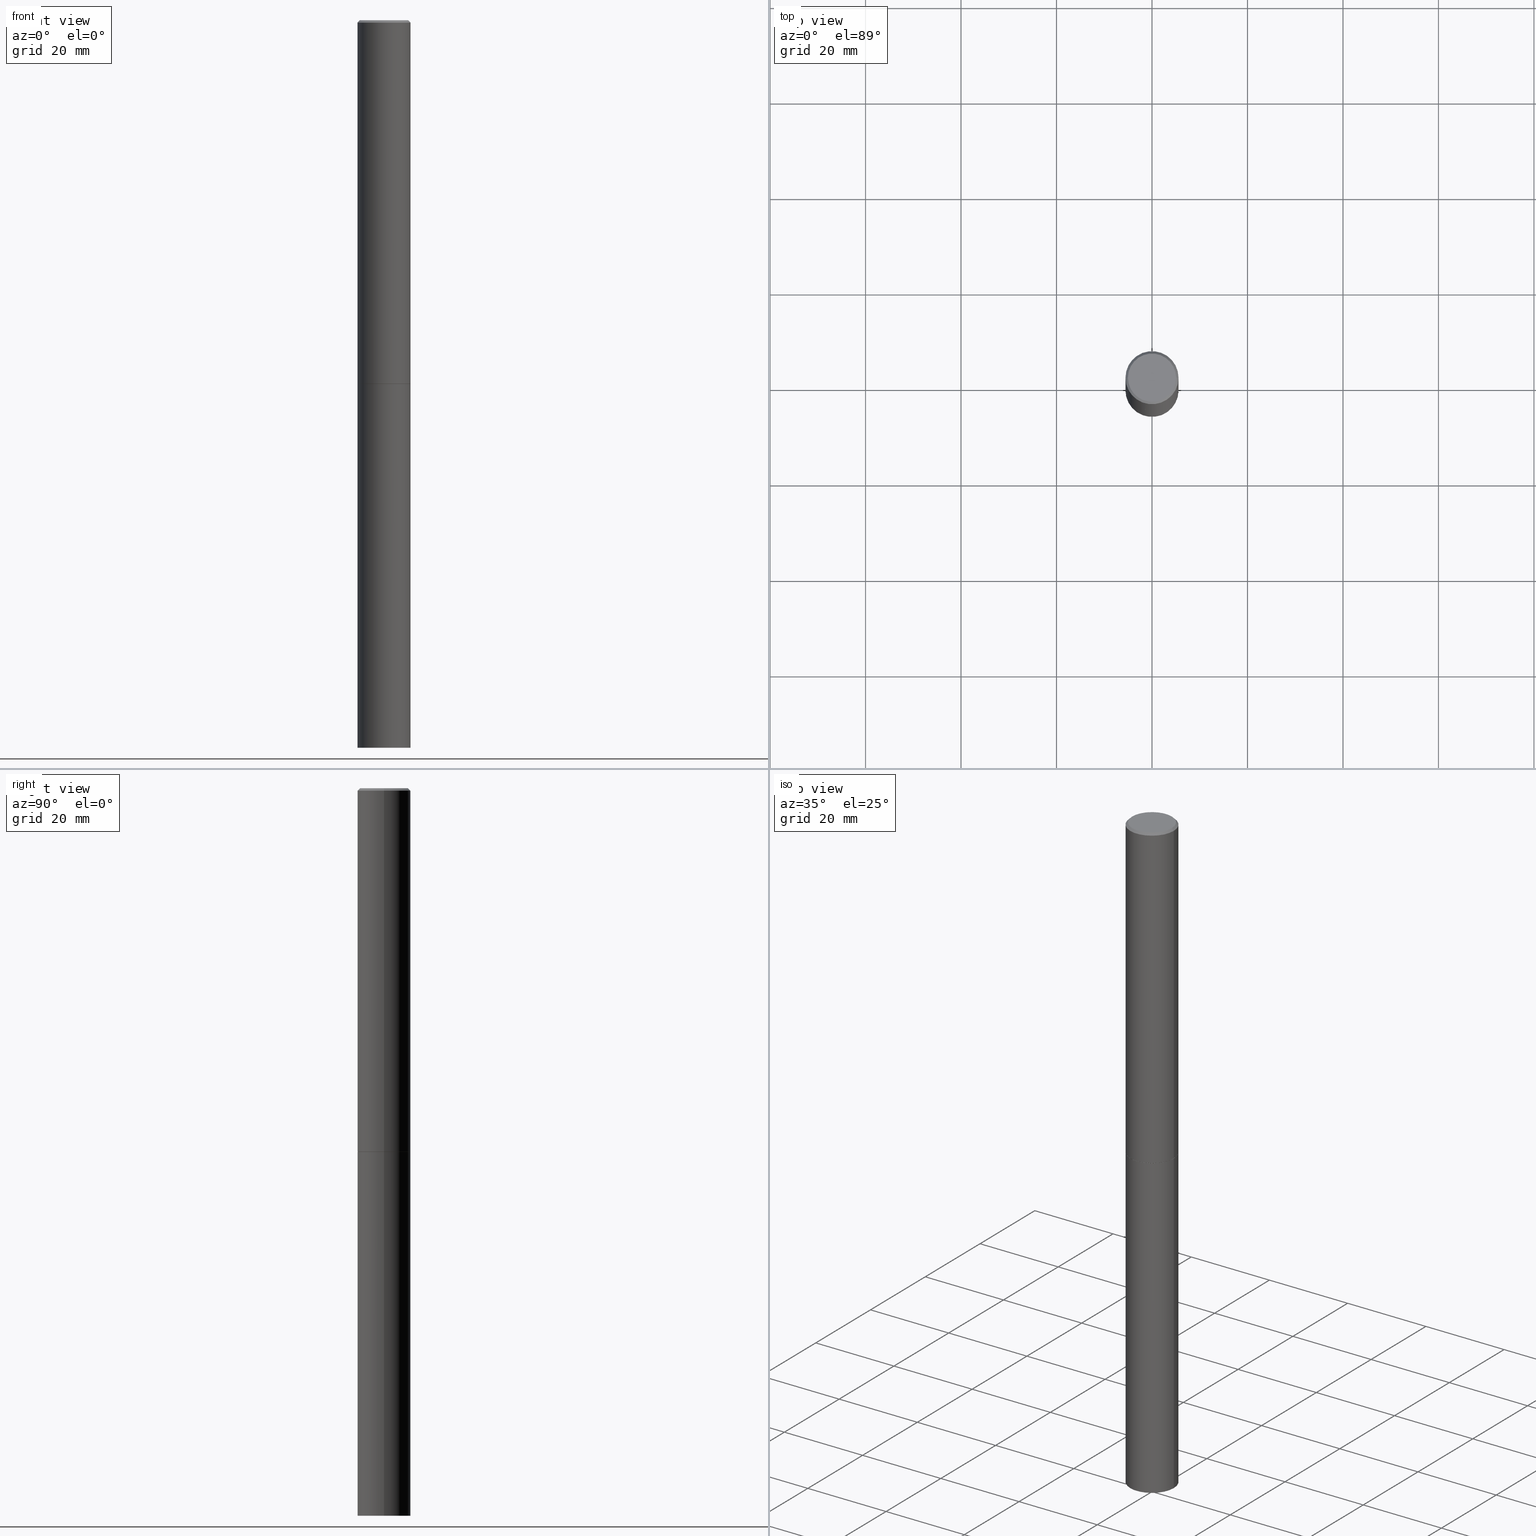
[diagram: canonical four-view strip — front | top / right | iso, engineering-drawing reading convention]
A machine part, canonical four-view strip (front | top / right | iso — engineering-drawing reading convention). The complete STEP part file that produces these views, byte-faithful:
ISO-10303-21;
HEADER;
FILE_DESCRIPTION (( 'STEP AP203' ),
    '1' );
FILE_NAME ('31963.STEP',
    '2024-02-27T14:28:25',
    ( '' ),
    ( '' ),
    'SwSTEP 2.0',
    'SolidWorks 2023',
    '' );
FILE_SCHEMA (( 'CONFIG_CONTROL_DESIGN' ));
ENDSEC;

DATA;
#1 = APPROVAL_STATUS ( 'not_yet_approved' ) ;
#2 = AXIS2_PLACEMENT_3D ( 'NONE', #167, #255, #233 ) ;
#3 = ORIENTED_EDGE ( 'NONE', *, *, #247, .T. ) ;
#4 = PRODUCT_DEFINITION ( 'UNKNOWN', '', #139, #20 ) ;
#5 = CARTESIAN_POINT ( 'NONE',  ( 0.2187500000000000000, -2.247641111880274434E-14, -6.000000000000000888 ) ) ;
#6 = DIRECTION ( 'NONE',  ( 1.000000000000000000, -6.982962677686266711E-15, 4.876176775795935232E-29 ) ) ;
#7 = APPROVAL_DATE_TIME ( #211, #65 ) ;
#8 = LENGTH_MEASURE_WITH_UNIT ( LENGTH_MEASURE( 0.02539999999999999897 ), #272 );
#9 = PLANE ( 'NONE',  #142 ) ;
#10 = CARTESIAN_POINT ( 'NONE',  ( 0.2187500000000000000, -1.200196710227330483E-14, -2.999999999999999556 ) ) ;
#11 = CIRCLE ( 'NONE', #107, 0.2187499999999996114 ) ;
#12 = ADVANCED_FACE ( 'NONE', ( #193 ), #225, .T. ) ;
#13 = APPLICATION_PROTOCOL_DEFINITION ( 'international standard', 'config_control_design', 1994, #261 ) ;
#14 = DIRECTION ( 'NONE',  ( 1.000000000000000000, -6.982962677686262766E-15, 0.000000000000000000 ) ) ;
#15 = CARTESIAN_POINT ( 'NONE',  ( 7.333960949749226429E-29, -1.047095253519059492E-14, -2.999000000000000554 ) ) ;
#16 = CARTESIAN_POINT ( 'NONE',  ( 7.336406418555408669E-29, -1.047444401652943478E-14, -2.999999999999999556 ) ) ;
#17 = EDGE_CURVE ( 'NONE', #27, #229, #359, .T. ) ;
#18 = VERTEX_POINT ( 'NONE', #267 ) ;
#19 = DIRECTION ( 'NONE',  ( -2.445468806185136597E-29, 3.491481338843145583E-15, 1.000000000000000000 ) ) ;
#20 = DESIGN_CONTEXT ( 'detailed design', #93, 'design' ) ;
#21 = DIRECTION ( 'NONE',  ( 1.000000000000000000, -6.982962677686266711E-15, 4.876176775795935232E-29 ) ) ;
#22 = CARTESIAN_POINT ( 'NONE',  ( 0.000000000000000000, 0.000000000000000000, 0.000000000000000000 ) ) ;
#23 = ADVANCED_FACE ( 'NONE', ( #248 ), #221, .T. ) ;
#24 = DIRECTION ( 'NONE',  ( -1.000000000000000000, 6.982962677686266711E-15, 0.000000000000000000 ) ) ;
#25 = AXIS2_PLACEMENT_3D ( 'NONE', #16, #118, #98 ) ;
#26 = ORIENTED_EDGE ( 'NONE', *, *, #92, .F. ) ;
#27 = VERTEX_POINT ( 'NONE', #271 ) ;
#28 = CARTESIAN_POINT ( 'NONE',  ( 1.467281283711081958E-28, -2.094888803305887271E-14, -6.000000000000000888 ) ) ;
#29 = ORIENTED_EDGE ( 'NONE', *, *, #180, .F. ) ;
#30 = PRODUCT ( '31963', '31963', '', ( #103 ) ) ;
#31 = VERTEX_POINT ( 'NONE', #10 ) ;
#32 = COORDINATED_UNIVERSAL_TIME_OFFSET ( 5, 0, .BEHIND. ) ;
#33 = ORIENTED_EDGE ( 'NONE', *, *, #287, .T. ) ;
#34 = CALENDAR_DATE ( 2024, 27, 2 ) ;
#35 = CIRCLE ( 'NONE', #59, 0.1987499999999996214 ) ;
#36 = ORIENTED_EDGE ( 'NONE', *, *, #17, .T. ) ;
#37 = LOCAL_TIME ( 9, 28, 25.00000000000000000, #99 ) ;
#38 = PERSON_AND_ORGANIZATION_ROLE ( 'creator' ) ;
#39 = DIRECTION ( 'NONE',  ( 2.445468806185136597E-29, -3.491481338843145583E-15, -1.000000000000000000 ) ) ;
#40 = CARTESIAN_POINT ( 'NONE',  ( 0.2187500000000000000, -1.527523085743870843E-15, 1.066663669705360885E-29 ) ) ;
#41 = DIRECTION ( 'NONE',  ( 1.000000000000000000, 0.000000000000000000, 0.000000000000000000 ) ) ;
#42 = EDGE_CURVE ( 'NONE', #314, #54, #148, .T. ) ;
#43 = DIRECTION ( 'NONE',  ( 1.000000000000000000, -6.982962677686266711E-15, 0.000000000000000000 ) ) ;
#44 = EDGE_CURVE ( 'NONE', #112, #18, #354, .T. ) ;
#45 = PLANE ( 'NONE',  #119 ) ;
#46 = AXIS2_PLACEMENT_3D ( 'NONE', #356, #39, #24 ) ;
#47 = AXIS2_PLACEMENT_3D ( 'NONE', #53, #330, #41 ) ;
#48 = FACE_OUTER_BOUND ( 'NONE', #218, .T. ) ;
#49 = CC_DESIGN_PERSON_AND_ORGANIZATION_ASSIGNMENT ( #190, #38, ( #4 ) ) ;
#50 = LINE ( 'NONE', #130, #237 ) ;
#51 = ADVANCED_BREP_SHAPE_REPRESENTATION ( '31963', ( #87, #204, #47 ), #312 ) ;
#52 = ORIENTED_EDGE ( 'NONE', *, *, #92, .T. ) ;
#53 = CARTESIAN_POINT ( 'NONE',  ( 0.000000000000000000, 0.000000000000000000, 0.000000000000000000 ) ) ;
#54 = VERTEX_POINT ( 'NONE', #349 ) ;
#55 = CARTESIAN_POINT ( 'NONE',  ( 1.387863832190142669E-15, 0.1987499999999996214, -6.939319160950738982E-16 ) ) ;
#56 = APPROVAL ( #244, 'UNSPECIFIED' ) ;
#57 = EDGE_CURVE ( 'NONE', #31, #85, #192, .T. ) ;
#58 = VERTEX_POINT ( 'NONE', #339 ) ;
#59 = AXIS2_PLACEMENT_3D ( 'NONE', #91, #62, #335 ) ;
#60 = PLANE ( 'NONE',  #2 ) ;
#61 = CARTESIAN_POINT ( 'NONE',  ( 0.2187500000000000000, -1.199847562093446498E-14, -2.999000000000000554 ) ) ;
#62 = DIRECTION ( 'NONE',  ( -2.445468806185136597E-29, 3.491481338843145583E-15, 1.000000000000000000 ) ) ;
#63 = AXIS2_PLACEMENT_3D ( 'NONE', #171, #286, #21 ) ;
#64 = DIRECTION ( 'NONE',  ( 1.000000000000000000, -6.982962677686266711E-15, 4.876176775795936353E-29 ) ) ;
#65 = APPROVAL ( #1, 'UNSPECIFIED' ) ;
#66 = DIRECTION ( 'NONE',  ( -2.445468806185136877E-29, 3.491481338843145188E-15, 1.000000000000000000 ) ) ;
#67 = AXIS2_PLACEMENT_3D ( 'NONE', #245, #187, #6 ) ;
#68 = CONICAL_SURFACE ( 'NONE', #276, 0.2177499999999999991, 0.7853981633978239785 ) ;
#69 = ORIENTED_EDGE ( 'NONE', *, *, #88, .T. ) ;
#70 = ORIENTED_EDGE ( 'NONE', *, *, #44, .F. ) ;
#71 = PRODUCT_RELATED_PRODUCT_CATEGORY ( 'detail', '', ( #30 ) ) ;
#72 = SECURITY_CLASSIFICATION_LEVEL ( 'unclassified' ) ;
#73 = AXIS2_PLACEMENT_3D ( 'NONE', #258, #289, #262 ) ;
#74 = DIRECTION ( 'NONE',  ( 0.7071067811865469066, -7.319954787623254468E-15, -0.7071067811865482389 ) ) ;
#75 = DIRECTION ( 'NONE',  ( 1.000000000000000000, -6.982962677686266711E-15, 0.000000000000000000 ) ) ;
#76 = CARTESIAN_POINT ( 'NONE',  ( -0.2187499999999996114, 1.457693458967004981E-15, -0.02000000000000003164 ) ) ;
#77 = EDGE_CURVE ( 'NONE', #27, #85, #322, .T. ) ;
#78 = DIRECTION ( 'NONE',  ( -2.445468806185136597E-29, 3.491481338843145583E-15, 1.000000000000000000 ) ) ;
#79 = LINE ( 'NONE', #188, #84 ) ;
#80 = APPROVAL_ROLE ( '' ) ;
#81 = CARTESIAN_POINT ( 'NONE',  ( -0.2187500000000000000, -1.415735379031893458E-14, -2.999999999999999556 ) ) ;
#82 =( NAMED_UNIT ( * ) SI_UNIT ( $, .STERADIAN. ) SOLID_ANGLE_UNIT ( ) );
#83 = VECTOR ( 'NONE', #66, 39.37007874015748143 ) ;
#84 = VECTOR ( 'NONE', #251, 39.37007874015748143 ) ;
#85 = VERTEX_POINT ( 'NONE', #81 ) ;
#86 = ORIENTED_EDGE ( 'NONE', *, *, #95, .F. ) ;
#87 = MANIFOLD_SOLID_BREP ( 'Body-Move/Copy2[1]', #363 ) ;
#88 = EDGE_CURVE ( 'NONE', #18, #54, #191, .T. ) ;
#89 = CARTESIAN_POINT ( 'NONE',  ( 7.333960949749226429E-29, -1.047095253519059492E-14, -2.999000000000000554 ) ) ;
#90 = CC_DESIGN_DATE_AND_TIME_ASSIGNMENT ( #123, #241, ( #343 ) ) ;
#91 = CARTESIAN_POINT ( 'NONE',  ( 0.000000000000000000, 0.000000000000000000, 0.000000000000000000 ) ) ;
#92 = EDGE_CURVE ( 'NONE', #172, #314, #243, .T. ) ;
#93 = APPLICATION_CONTEXT ( 'configuration controlled 3d designs of mechanical parts and assemblies' ) ;
#94 = EDGE_LOOP ( 'NONE', ( #344, #125 ) ) ;
#95 = EDGE_CURVE ( 'NONE', #112, #58, #134, .T. ) ;
#96 = ORIENTED_EDGE ( 'NONE', *, *, #319, .T. ) ;
#97 = LINE ( 'NONE', #76, #198 ) ;
#98 = DIRECTION ( 'NONE',  ( 1.000000000000000000, -6.982962677686266711E-15, 0.000000000000000000 ) ) ;
#99 = COORDINATED_UNIVERSAL_TIME_OFFSET ( 5, 0, .BEHIND. ) ;
#100 = APPROVAL_PERSON_ORGANIZATION ( #158, #309, #80 ) ;
#101 = CARTESIAN_POINT ( 'NONE',  ( -0.2177499999999999991, -8.927237209411817416E-15, -2.999999999999999556 ) ) ;
#102 = CARTESIAN_POINT ( 'NONE',  ( 1.527523085743943813E-15, 0.2187499999999895084, -3.000000000000000444 ) ) ;
#103 = MECHANICAL_CONTEXT ( 'NONE', #261, 'mechanical' ) ;
#104 = CARTESIAN_POINT ( 'NONE',  ( 7.336406418555408669E-29, -1.047444401652943478E-14, -2.999999999999999556 ) ) ;
#105 = CALENDAR_DATE ( 2024, 27, 2 ) ;
#106 = DIRECTION ( 'NONE',  ( 1.000000000000000000, -6.982962677686262766E-15, 0.000000000000000000 ) ) ;
#107 = AXIS2_PLACEMENT_3D ( 'NONE', #161, #220, #75 ) ;
#108 = DIRECTION ( 'NONE',  ( 1.000000000000000000, -6.982962677686266711E-15, 0.000000000000000000 ) ) ;
#109 = ORIENTED_EDGE ( 'NONE', *, *, #247, .F. ) ;
#110 = CC_DESIGN_SECURITY_CLASSIFICATION ( #343, ( #139 ) ) ;
#111 = ORIENTED_EDGE ( 'NONE', *, *, #346, .T. ) ;
#112 = VERTEX_POINT ( 'NONE', #302 ) ;
#113 = FACE_OUTER_BOUND ( 'NONE', #94, .T. ) ;
#114 = ADVANCED_FACE ( 'NONE', ( #48 ), #366, .T. ) ;
#115 = AXIS2_PLACEMENT_3D ( 'NONE', #55, #232, #136 ) ;
#116 = CIRCLE ( 'NONE', #73, 0.2177499999999999991 ) ;
#117 = EDGE_LOOP ( 'NONE', ( #33, #323, #194, #176 ) ) ;
#118 = DIRECTION ( 'NONE',  ( -2.445468806185136597E-29, 3.491481338843145583E-15, 1.000000000000000000 ) ) ;
#119 = AXIS2_PLACEMENT_3D ( 'NONE', #156, #138, #361 ) ;
#120 = PERSON_AND_ORGANIZATION_ROLE ( 'creator' ) ;
#121 = CARTESIAN_POINT ( 'NONE',  ( -0.2187499999999998057, 1.554312234475217776E-15, -1.076017050993259781E-29 ) ) ;
#122 = DIMENSIONAL_EXPONENTS ( 1.000000000000000000, 0.000000000000000000, 0.000000000000000000, 0.000000000000000000, 0.000000000000000000, 0.000000000000000000, 0.000000000000000000 ) ;
#123 = DATE_AND_TIME ( #265, #215 ) ;
#124 = CIRCLE ( 'NONE', #288, 0.1987499999999996214 ) ;
#125 = ORIENTED_EDGE ( 'NONE', *, *, #17, .F. ) ;
#126 = FACE_OUTER_BOUND ( 'NONE', #348, .T. ) ;
#127 = EDGE_LOOP ( 'NONE', ( #111, #69, #147, #206 ) ) ;
#128 = DATE_AND_TIME ( #34, #159 ) ;
#129 = EDGE_LOOP ( 'NONE', ( #293, #222 ) ) ;
#130 = CARTESIAN_POINT ( 'NONE',  ( 0.2177499999999999991, -1.199498413959562039E-14, -2.999999999999999556 ) ) ;
#131 = CC_DESIGN_DATE_AND_TIME_ASSIGNMENT ( #154, #209, ( #4 ) ) ;
#132 = FACE_OUTER_BOUND ( 'NONE', #127, .T. ) ;
#133 = EDGE_CURVE ( 'NONE', #85, #31, #157, .T. ) ;
#134 = CIRCLE ( 'NONE', #285, 0.2177499999999999991 ) ;
#135 = AXIS2_PLACEMENT_3D ( 'NONE', #184, #352, #275 ) ;
#136 = DIRECTION ( 'NONE',  ( -1.000000000000000000, 6.982962677686265922E-15, -4.876176775795935793E-29 ) ) ;
#137 = ADVANCED_FACE ( 'NONE', ( #273 ), #9, .F. ) ;
#138 = DIRECTION ( 'NONE',  ( -2.438088387897960049E-29, 3.491481338843145188E-15, 1.000000000000000000 ) ) ;
#139 = PRODUCT_DEFINITION_FORMATION_WITH_SPECIFIED_SOURCE ( 'ANY', '', #30, .NOT_KNOWN. ) ;
#140 = ADVANCED_FACE ( 'NONE', ( #301 ), #45, .F. ) ;
#141 = DIRECTION ( 'NONE',  ( -0.7071067811868130271, 7.493145998871311837E-15, 0.7071067811862817853 ) ) ;
#142 = AXIS2_PLACEMENT_3D ( 'NONE', #102, #325, #189 ) ;
#143 = EDGE_LOOP ( 'NONE', ( #291, #52, #173, #109 ) ) ;
#144 = ORIENTED_EDGE ( 'NONE', *, *, #165, .F. ) ;
#145 = CC_DESIGN_PERSON_AND_ORGANIZATION_ASSIGNMENT ( #178, #292, ( #343 ) ) ;
#146 = PERSON_AND_ORGANIZATION ( #231, #360 ) ;
#147 = ORIENTED_EDGE ( 'NONE', *, *, #42, .F. ) ;
#148 = CIRCLE ( 'NONE', #342, 0.2187499999999996114 ) ;
#149 = CC_DESIGN_APPROVAL ( #309, ( #4 ) ) ;
#150 = COORDINATED_UNIVERSAL_TIME_OFFSET ( 5, 0, .BEHIND. ) ;
#151 = ORIENTED_EDGE ( 'NONE', *, *, #295, .T. ) ;
#152 = CALENDAR_DATE ( 2024, 27, 2 ) ;
#153 = CC_DESIGN_PERSON_AND_ORGANIZATION_ASSIGNMENT ( #320, #345, ( #139 ) ) ;
#154 = DATE_AND_TIME ( #152, #239 ) ;
#155 = DIRECTION ( 'NONE',  ( 1.000000000000000000, -6.982962677686262766E-15, 0.000000000000000000 ) ) ;
#156 = CARTESIAN_POINT ( 'NONE',  ( 7.336406418555408669E-29, -1.047444401652943478E-14, -2.999999999999999556 ) ) ;
#157 = CIRCLE ( 'NONE', #208, 0.2187500000000000000 ) ;
#158 = PERSON_AND_ORGANIZATION ( #231, #360 ) ;
#159 = LOCAL_TIME ( 9, 28, 25.00000000000000000, #32 ) ;
#160 = LINE ( 'NONE', #40, #179 ) ;
#161 = CARTESIAN_POINT ( 'NONE',  ( 4.890937612370280165E-31, -6.982962677686301470E-17, -0.02000000000000003164 ) ) ;
#162 = ORIENTED_EDGE ( 'NONE', *, *, #306, .T. ) ;
#163 = ADVANCED_FACE ( 'NONE', ( #113 ), #60, .T. ) ;
#164 = APPROVAL_PERSON_ORGANIZATION ( #274, #65, #269 ) ;
#165 = EDGE_CURVE ( 'NONE', #18, #199, #203, .T. ) ;
#166 = APPROVAL_DATE_TIME ( #254, #56 ) ;
#167 = CARTESIAN_POINT ( 'NONE',  ( 1.527523085744017374E-15, 0.2187499999999790445, -6.000000000000001776 ) ) ;
#168 = DIRECTION ( 'NONE',  ( 1.000000000000000000, -6.982962677686262766E-15, 0.000000000000000000 ) ) ;
#169 = CYLINDRICAL_SURFACE ( 'NONE', #63, 0.2187500000000000000 ) ;
#170 = LOCAL_TIME ( 9, 28, 25.00000000000000000, #250 ) ;
#171 = CARTESIAN_POINT ( 'NONE',  ( 0.000000000000000000, 0.000000000000000000, 0.000000000000000000 ) ) ;
#172 = VERTEX_POINT ( 'NONE', #284 ) ;
#173 = ORIENTED_EDGE ( 'NONE', *, *, #42, .T. ) ;
#174 = EDGE_CURVE ( 'NONE', #172, #362, #124, .T. ) ;
#175 = CLOSED_SHELL ( 'NONE', ( #365, #240, #12, #311, #197, #114, #140, #252 ) ) ;
#176 = ORIENTED_EDGE ( 'NONE', *, *, #319, .F. ) ;
#177 = EDGE_LOOP ( 'NONE', ( #26, #29, #3, #162 ) ) ;
#178 = PERSON_AND_ORGANIZATION ( #231, #360 ) ;
#179 = VECTOR ( 'NONE', #246, 39.37007874015748143 ) ;
#180 = EDGE_CURVE ( 'NONE', #362, #172, #35, .T. ) ;
#181 = APPROVAL_STATUS ( 'not_yet_approved' ) ;
#182 = ORIENTED_EDGE ( 'NONE', *, *, #44, .T. ) ;
#183 = DIRECTION ( 'NONE',  ( 1.000000000000000000, -6.982962677686266711E-15, 0.000000000000000000 ) ) ;
#184 = CARTESIAN_POINT ( 'NONE',  ( 4.890937612370280165E-31, -6.982962677686301470E-17, -0.02000000000000003164 ) ) ;
#185 = DIRECTION ( 'NONE',  ( -0.7071067811865469066, 2.468850131082249961E-15, -0.7071067811865482389 ) ) ;
#186 = DIRECTION ( 'NONE',  ( -2.445468806185136597E-29, 3.491481338843145583E-15, 1.000000000000000000 ) ) ;
#187 = DIRECTION ( 'NONE',  ( -2.445468806185136597E-29, 3.491481338843145583E-15, 1.000000000000000000 ) ) ;
#188 = CARTESIAN_POINT ( 'NONE',  ( 0.2187499999999998057, -1.527523085743869462E-15, 1.066663669705360184E-29 ) ) ;
#189 = DIRECTION ( 'NONE',  ( -1.000000000000000000, 6.982962677686265922E-15, -4.876176775795935793E-29 ) ) ;
#190 = PERSON_AND_ORGANIZATION ( #231, #360 ) ;
#191 = LINE ( 'NONE', #121, #236 ) ;
#192 = CIRCLE ( 'NONE', #294, 0.2187500000000000000 ) ;
#193 = FACE_OUTER_BOUND ( 'NONE', #143, .T. ) ;
#194 = ORIENTED_EDGE ( 'NONE', *, *, #57, .F. ) ;
#195 = EDGE_LOOP ( 'NONE', ( #238, #36, #96, #300 ) ) ;
#196 = SHAPE_DEFINITION_REPRESENTATION ( #338, #51 ) ;
#197 = ADVANCED_FACE ( 'NONE', ( #200 ), #310, .T. ) ;
#198 = VECTOR ( 'NONE', #185, 39.37007874015748143 ) ;
#199 = VERTEX_POINT ( 'NONE', #61 ) ;
#200 = FACE_OUTER_BOUND ( 'NONE', #279, .T. ) ;
#201 = DIRECTION ( 'NONE',  ( -2.445468806185136597E-29, 3.491481338843145583E-15, 1.000000000000000000 ) ) ;
#202 = ADVANCED_FACE ( 'NONE', ( #313 ), #169, .T. ) ;
#203 = CIRCLE ( 'NONE', #329, 0.2187500000000000000 ) ;
#204 = MANIFOLD_SOLID_BREP ( 'Body-Move/Copy2[2]', #175 ) ;
#205 = CARTESIAN_POINT ( 'NONE',  ( -0.2187500000000000000, 1.554312234475219157E-15, -1.076017050993260622E-29 ) ) ;
#206 = ORIENTED_EDGE ( 'NONE', *, *, #295, .F. ) ;
#207 = ORIENTED_EDGE ( 'NONE', *, *, #95, .T. ) ;
#208 = AXIS2_PLACEMENT_3D ( 'NONE', #214, #186, #298 ) ;
#209 = DATE_TIME_ROLE ( 'creation_date' ) ;
#210 = EDGE_CURVE ( 'NONE', #58, #112, #116, .T. ) ;
#211 = DATE_AND_TIME ( #105, #170 ) ;
#212 = ORIENTED_EDGE ( 'NONE', *, *, #165, .T. ) ;
#213 = CARTESIAN_POINT ( 'NONE',  ( 0.2187499999999996114, -1.570563563789383066E-15, -0.02000000000000003164 ) ) ;
#214 = CARTESIAN_POINT ( 'NONE',  ( 7.336406418555408669E-29, -1.047444401652943478E-14, -2.999999999999999556 ) ) ;
#215 = LOCAL_TIME ( 9, 28, 25.00000000000000000, #150 ) ;
#216 = APPROVAL_PERSON_ORGANIZATION ( #347, #56, #351 ) ;
#217 = CALENDAR_DATE ( 2024, 27, 2 ) ;
#218 = EDGE_LOOP ( 'NONE', ( #70, #207, #266, #144 ) ) ;
#219 = DIRECTION ( 'NONE',  ( -2.445468806185136877E-29, 3.491481338843145188E-15, 1.000000000000000000 ) ) ;
#220 = DIRECTION ( 'NONE',  ( -2.445468806185136597E-29, 3.491481338843145583E-15, 1.000000000000000000 ) ) ;
#221 = CYLINDRICAL_SURFACE ( 'NONE', #67, 0.2187500000000000000 ) ;
#222 = ORIENTED_EDGE ( 'NONE', *, *, #133, .T. ) ;
#223 = CARTESIAN_POINT ( 'NONE',  ( 4.890937612370280165E-31, -6.982962677686301470E-17, -0.02000000000000003164 ) ) ;
#224 =( NAMED_UNIT ( * ) PLANE_ANGLE_UNIT ( ) SI_UNIT ( $, .RADIAN. ) );
#225 = CONICAL_SURFACE ( 'NONE', #46, 0.2187499999999996114, 0.7853981633974473908 ) ;
#226 = AXIS2_PLACEMENT_3D ( 'NONE', #15, #278, #14 ) ;
#227 = CYLINDRICAL_SURFACE ( 'NONE', #336, 0.2187499999999998057 ) ;
#228 =( CONVERSION_BASED_UNIT ( 'INCH', #8 ) LENGTH_UNIT ( ) NAMED_UNIT ( #122 ) );
#229 = VERTEX_POINT ( 'NONE', #5 ) ;
#230 = AXIS2_PLACEMENT_3D ( 'NONE', #28, #296, #106 ) ;
#231 = PERSON ( 'UNSPECIFIED', 'UNSPECIFIED', 'UNSPECIFIED', ('UNSPECIFIED'), ('UNSPECIFIED'), ('UNSPECIFIED') ) ;
#232 = DIRECTION ( 'NONE',  ( 2.438088387897960049E-29, -3.491481338843145188E-15, -1.000000000000000000 ) ) ;
#233 = DIRECTION ( 'NONE',  ( -1.000000000000000000, 6.982962677686265922E-15, -4.876176775795935793E-29 ) ) ;
#234 = UNCERTAINTY_MEASURE_WITH_UNIT (LENGTH_MEASURE( 1.000000000000000082E-05 ), #228, 'distance_accuracy_value', 'NONE');
#235 = CARTESIAN_POINT ( 'NONE',  ( 0.000000000000000000, 0.000000000000000000, 0.000000000000000000 ) ) ;
#236 = VECTOR ( 'NONE', #219, 39.37007874015748143 ) ;
#237 = VECTOR ( 'NONE', #358, 39.37007874015748854 ) ;
#238 = ORIENTED_EDGE ( 'NONE', *, *, #77, .F. ) ;
#239 = LOCAL_TIME ( 9, 28, 25.00000000000000000, #277 ) ;
#240 = ADVANCED_FACE ( 'NONE', ( #132 ), #227, .T. ) ;
#241 = DATE_TIME_ROLE ( 'classification_date' ) ;
#242 = ORIENTED_EDGE ( 'NONE', *, *, #88, .F. ) ;
#243 = LINE ( 'NONE', #213, #264 ) ;
#244 = APPROVAL_STATUS ( 'not_yet_approved' ) ;
#245 = CARTESIAN_POINT ( 'NONE',  ( 0.000000000000000000, 0.000000000000000000, 0.000000000000000000 ) ) ;
#246 = DIRECTION ( 'NONE',  ( -2.445468806185136877E-29, 3.491481338843145188E-15, 1.000000000000000000 ) ) ;
#247 = EDGE_CURVE ( 'NONE', #362, #54, #97, .T. ) ;
#248 = FACE_OUTER_BOUND ( 'NONE', #195, .T. ) ;
#249 = CARTESIAN_POINT ( 'NONE',  ( 0.2187499999999996114, -1.570563563789383066E-15, -0.02000000000000003164 ) ) ;
#250 = COORDINATED_UNIVERSAL_TIME_OFFSET ( 5, 0, .BEHIND. ) ;
#251 = DIRECTION ( 'NONE',  ( -2.445468806185136877E-29, 3.491481338843145188E-15, 1.000000000000000000 ) ) ;
#252 = ADVANCED_FACE ( 'NONE', ( #283 ), #337, .F. ) ;
#253 = CARTESIAN_POINT ( 'NONE',  ( 1.467281283711081958E-28, -2.094888803305887271E-14, -6.000000000000000888 ) ) ;
#254 = DATE_AND_TIME ( #217, #37 ) ;
#255 = DIRECTION ( 'NONE',  ( 2.438088387897960049E-29, -3.491481338843145188E-15, -1.000000000000000000 ) ) ;
#256 = VECTOR ( 'NONE', #141, 39.37007874015748854 ) ;
#257 = CC_DESIGN_APPROVAL ( #65, ( #139 ) ) ;
#258 = CARTESIAN_POINT ( 'NONE',  ( 7.336406418555408669E-29, -1.047444401652943478E-14, -2.999999999999999556 ) ) ;
#259 = DIRECTION ( 'NONE',  ( 1.000000000000000000, -6.982962677686262766E-15, 0.000000000000000000 ) ) ;
#260 = ORIENTED_EDGE ( 'NONE', *, *, #282, .F. ) ;
#261 = APPLICATION_CONTEXT ( 'configuration controlled 3d designs of mechanical parts and assemblies' ) ;
#262 = DIRECTION ( 'NONE',  ( 1.000000000000000000, -6.982962677686266711E-15, 0.000000000000000000 ) ) ;
#263 = PERSON_AND_ORGANIZATION_ROLE ( 'design_owner' ) ;
#264 = VECTOR ( 'NONE', #74, 39.37007874015748143 ) ;
#265 = CALENDAR_DATE ( 2024, 27, 2 ) ;
#266 = ORIENTED_EDGE ( 'NONE', *, *, #282, .T. ) ;
#267 = CARTESIAN_POINT ( 'NONE',  ( -0.2187500000000000278, -3.716078846508506010E-15, -2.999000000000000554 ) ) ;
#268 = DIRECTION ( 'NONE',  ( -2.445468806185136597E-29, 3.491481338843145583E-15, 1.000000000000000000 ) ) ;
#269 = APPROVAL_ROLE ( '' ) ;
#270 = ORIENTED_EDGE ( 'NONE', *, *, #210, .T. ) ;
#271 = CARTESIAN_POINT ( 'NONE',  ( -0.2187500000000000000, -1.415735379031893458E-14, -6.000000000000000888 ) ) ;
#272 =( LENGTH_UNIT ( ) NAMED_UNIT ( * ) SI_UNIT ( $, .METRE. ) );
#273 = FACE_OUTER_BOUND ( 'NONE', #129, .T. ) ;
#274 = PERSON_AND_ORGANIZATION ( #231, #360 ) ;
#275 = DIRECTION ( 'NONE',  ( -1.000000000000000000, 6.982962677686266711E-15, 0.000000000000000000 ) ) ;
#276 = AXIS2_PLACEMENT_3D ( 'NONE', #350, #305, #108 ) ;
#277 = COORDINATED_UNIVERSAL_TIME_OFFSET ( 5, 0, .BEHIND. ) ;
#278 = DIRECTION ( 'NONE',  ( -2.445468806185136597E-29, 3.491481338843145583E-15, 1.000000000000000000 ) ) ;
#279 = EDGE_LOOP ( 'NONE', ( #242, #212, #151, #328 ) ) ;
#280 = CIRCLE ( 'NONE', #226, 0.2187500000000000000 ) ;
#281 = ORIENTED_EDGE ( 'NONE', *, *, #210, .F. ) ;
#282 = EDGE_CURVE ( 'NONE', #58, #199, #50, .T. ) ;
#283 = FACE_OUTER_BOUND ( 'NONE', #317, .T. ) ;
#284 = CARTESIAN_POINT ( 'NONE',  ( 0.1987499999999996214, -1.467043770423236283E-15, 9.982525199991766879E-30 ) ) ;
#285 = AXIS2_PLACEMENT_3D ( 'NONE', #324, #78, #43 ) ;
#286 = DIRECTION ( 'NONE',  ( -2.445468806185136597E-29, 3.491481338843145583E-15, 1.000000000000000000 ) ) ;
#287 = EDGE_CURVE ( 'NONE', #229, #27, #333, .T. ) ;
#288 = AXIS2_PLACEMENT_3D ( 'NONE', #22, #19, #364 ) ;
#289 = DIRECTION ( 'NONE',  ( -2.445468806185136597E-29, 3.491481338843145583E-15, 1.000000000000000000 ) ) ;
#290 = APPLICATION_PROTOCOL_DEFINITION ( 'international standard', 'config_control_design', 1994, #93 ) ;
#291 = ORIENTED_EDGE ( 'NONE', *, *, #174, .F. ) ;
#292 = PERSON_AND_ORGANIZATION_ROLE ( 'classification_officer' ) ;
#293 = ORIENTED_EDGE ( 'NONE', *, *, #57, .T. ) ;
#294 = AXIS2_PLACEMENT_3D ( 'NONE', #104, #326, #259 ) ;
#295 = EDGE_CURVE ( 'NONE', #199, #314, #79, .T. ) ;
#296 = DIRECTION ( 'NONE',  ( -2.445468806185136597E-29, 3.491481338843145583E-15, 1.000000000000000000 ) ) ;
#297 = FACE_OUTER_BOUND ( 'NONE', #177, .T. ) ;
#298 = DIRECTION ( 'NONE',  ( 1.000000000000000000, -6.982962677686262766E-15, 0.000000000000000000 ) ) ;
#299 = APPROVAL_DATE_TIME ( #128, #309 ) ;
#300 = ORIENTED_EDGE ( 'NONE', *, *, #133, .F. ) ;
#301 = FACE_OUTER_BOUND ( 'NONE', #307, .T. ) ;
#302 = CARTESIAN_POINT ( 'NONE',  ( -0.2177499999999999991, -8.921938755063598170E-15, -2.999999999999999556 ) ) ;
#303 = CONICAL_SURFACE ( 'NONE', #135, 0.2187499999999996114, 0.7853981633974473908 ) ;
#304 = DIRECTION ( 'NONE',  ( -2.445468806185136597E-29, 3.491481338843145583E-15, 1.000000000000000000 ) ) ;
#305 = DIRECTION ( 'NONE',  ( -2.445468806185136597E-29, 3.491481338843145583E-15, 1.000000000000000000 ) ) ;
#306 = EDGE_CURVE ( 'NONE', #54, #314, #11, .T. ) ;
#307 = EDGE_LOOP ( 'NONE', ( #281, #86 ) ) ;
#308 = CC_DESIGN_APPROVAL ( #56, ( #343 ) ) ;
#309 = APPROVAL ( #181, 'UNSPECIFIED' ) ;
#310 = CYLINDRICAL_SURFACE ( 'NONE', #316, 0.2187499999999998057 ) ;
#311 = ADVANCED_FACE ( 'NONE', ( #297 ), #303, .T. ) ;
#312 =( GEOMETRIC_REPRESENTATION_CONTEXT ( 3 ) GLOBAL_UNCERTAINTY_ASSIGNED_CONTEXT ( ( #234 ) ) GLOBAL_UNIT_ASSIGNED_CONTEXT ( ( #228, #224, #82 ) ) REPRESENTATION_CONTEXT ( 'NONE', 'WORKASPACE' ) );
#313 = FACE_OUTER_BOUND ( 'NONE', #117, .T. ) ;
#314 = VERTEX_POINT ( 'NONE', #249 ) ;
#315 = DIRECTION ( 'NONE',  ( 1.000000000000000000, -6.982962677686266711E-15, 4.876176775795936353E-29 ) ) ;
#316 = AXIS2_PLACEMENT_3D ( 'NONE', #235, #334, #64 ) ;
#317 = EDGE_LOOP ( 'NONE', ( #321, #331 ) ) ;
#318 = AXIS2_PLACEMENT_3D ( 'NONE', #253, #268, #155 ) ;
#319 = EDGE_CURVE ( 'NONE', #229, #31, #160, .T. ) ;
#320 = PERSON_AND_ORGANIZATION ( #231, #360 ) ;
#321 = ORIENTED_EDGE ( 'NONE', *, *, #180, .T. ) ;
#322 = LINE ( 'NONE', #205, #83 ) ;
#323 = ORIENTED_EDGE ( 'NONE', *, *, #77, .T. ) ;
#324 = CARTESIAN_POINT ( 'NONE',  ( 7.336406418555408669E-29, -1.047444401652943478E-14, -2.999999999999999556 ) ) ;
#325 = DIRECTION ( 'NONE',  ( 2.438088387897960049E-29, -3.491481338843145188E-15, -1.000000000000000000 ) ) ;
#326 = DIRECTION ( 'NONE',  ( -2.445468806185136597E-29, 3.491481338843145583E-15, 1.000000000000000000 ) ) ;
#327 = DIRECTION ( 'NONE',  ( -2.445468806185136597E-29, 3.491481338843145583E-15, 1.000000000000000000 ) ) ;
#328 = ORIENTED_EDGE ( 'NONE', *, *, #306, .F. ) ;
#329 = AXIS2_PLACEMENT_3D ( 'NONE', #89, #201, #168 ) ;
#330 = DIRECTION ( 'NONE',  ( 0.000000000000000000, 0.000000000000000000, 1.000000000000000000 ) ) ;
#331 = ORIENTED_EDGE ( 'NONE', *, *, #174, .T. ) ;
#332 = ORIENTED_EDGE ( 'NONE', *, *, #346, .F. ) ;
#333 = CIRCLE ( 'NONE', #318, 0.2187500000000000000 ) ;
#334 = DIRECTION ( 'NONE',  ( -2.445468806185136597E-29, 3.491481338843145583E-15, 1.000000000000000000 ) ) ;
#335 = DIRECTION ( 'NONE',  ( 1.000000000000000000, -6.982962677686266711E-15, 4.876176775795935232E-29 ) ) ;
#336 = AXIS2_PLACEMENT_3D ( 'NONE', #353, #304, #315 ) ;
#337 = PLANE ( 'NONE',  #115 ) ;
#338 = PRODUCT_DEFINITION_SHAPE ( 'NONE', 'NONE',  #4 ) ;
#339 = CARTESIAN_POINT ( 'NONE',  ( 0.2177499999999999991, -1.199498413959562039E-14, -2.999999999999999556 ) ) ;
#340 = CC_DESIGN_PERSON_AND_ORGANIZATION_ASSIGNMENT ( #355, #263, ( #30 ) ) ;
#341 = CC_DESIGN_PERSON_AND_ORGANIZATION_ASSIGNMENT ( #146, #120, ( #139 ) ) ;
#342 = AXIS2_PLACEMENT_3D ( 'NONE', #223, #327, #183 ) ;
#343 = SECURITY_CLASSIFICATION ( '', '', #72 ) ;
#344 = ORIENTED_EDGE ( 'NONE', *, *, #287, .F. ) ;
#345 = PERSON_AND_ORGANIZATION_ROLE ( 'design_supplier' ) ;
#346 = EDGE_CURVE ( 'NONE', #199, #18, #280, .T. ) ;
#347 = PERSON_AND_ORGANIZATION ( #231, #360 ) ;
#348 = EDGE_LOOP ( 'NONE', ( #270, #182, #332, #260 ) ) ;
#349 = CARTESIAN_POINT ( 'NONE',  ( -0.2187499999999996114, 1.457693458967004981E-15, -0.02000000000000003164 ) ) ;
#350 = CARTESIAN_POINT ( 'NONE',  ( 7.336406418555408669E-29, -1.047444401652943478E-14, -2.999999999999999556 ) ) ;
#351 = APPROVAL_ROLE ( '' ) ;
#352 = DIRECTION ( 'NONE',  ( 2.445468806185136597E-29, -3.491481338843145583E-15, -1.000000000000000000 ) ) ;
#353 = CARTESIAN_POINT ( 'NONE',  ( 0.000000000000000000, 0.000000000000000000, 0.000000000000000000 ) ) ;
#354 = LINE ( 'NONE', #101, #256 ) ;
#355 = PERSON_AND_ORGANIZATION ( #231, #360 ) ;
#356 = CARTESIAN_POINT ( 'NONE',  ( 4.890937612370280165E-31, -6.982962677686301470E-17, -0.02000000000000003164 ) ) ;
#357 = CARTESIAN_POINT ( 'NONE',  ( -0.1987499999999996214, 1.422778645578574121E-15, -9.827974342635066879E-30 ) ) ;
#358 = DIRECTION ( 'NONE',  ( 0.7071067811868130271, -2.468850131085038979E-15, 0.7071067811862817853 ) ) ;
#359 = CIRCLE ( 'NONE', #230, 0.2187500000000000000 ) ;
#360 = ORGANIZATION ( 'UNSPECIFIED', 'UNSPECIFIED', '' ) ;
#361 = DIRECTION ( 'NONE',  ( 1.000000000000000000, -6.982962677686265922E-15, 4.876176775795935793E-29 ) ) ;
#362 = VERTEX_POINT ( 'NONE', #357 ) ;
#363 = CLOSED_SHELL ( 'NONE', ( #202, #163, #137, #23 ) ) ;
#364 = DIRECTION ( 'NONE',  ( 1.000000000000000000, -6.982962677686266711E-15, 4.876176775795935232E-29 ) ) ;
#365 = ADVANCED_FACE ( 'NONE', ( #126 ), #68, .T. ) ;
#366 = CONICAL_SURFACE ( 'NONE', #25, 0.2177499999999999991, 0.7853981633978239785 ) ;
ENDSEC;
END-ISO-10303-21;
